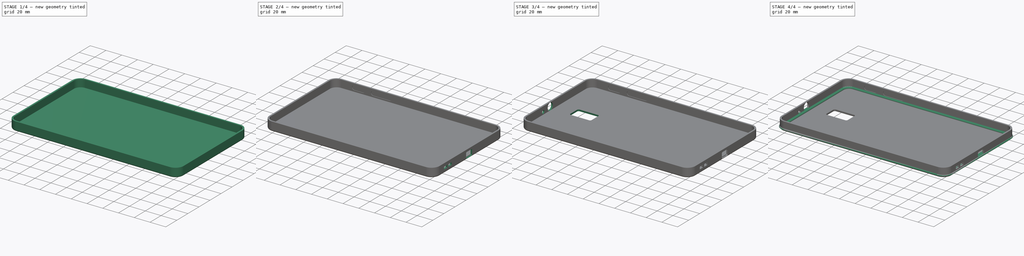
[diagram: build sequence overview — one tinted view per stage of 4, left to right]
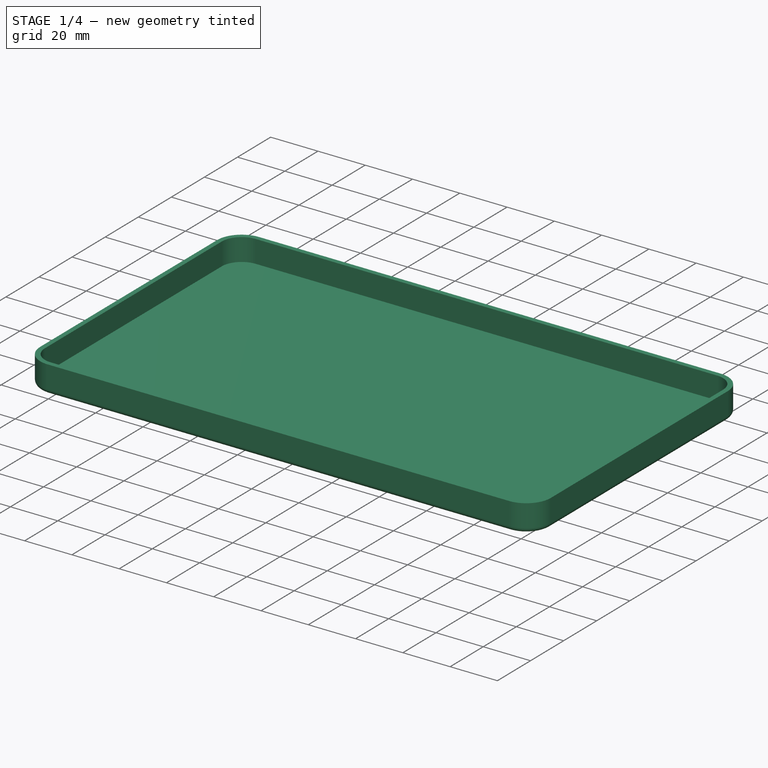
[diagram: stage 1 of 4 — iso view after this stage's code; geometry added in this stage tinted green]
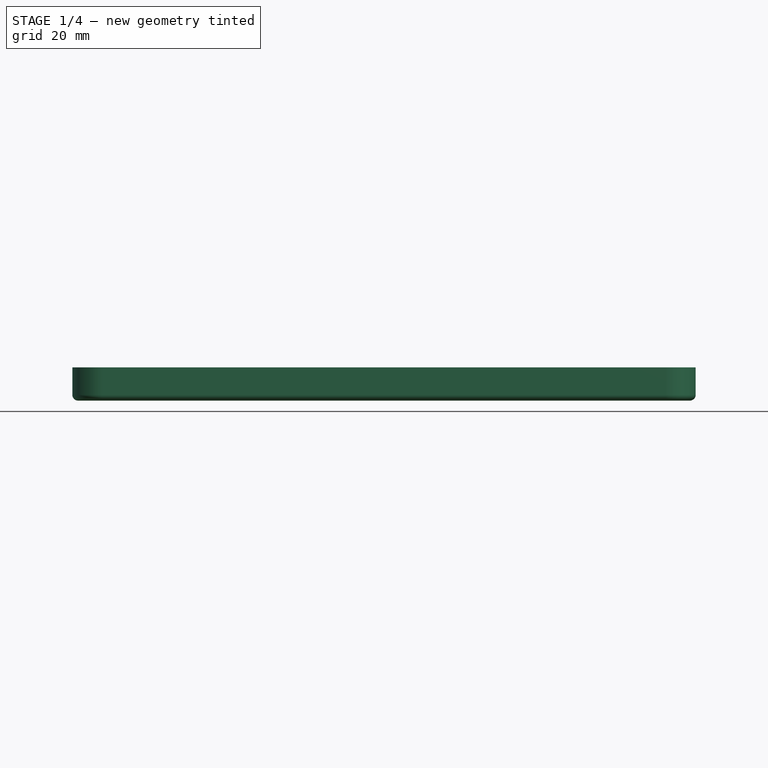
[diagram: stage 1 of 4 — front view after this stage's code; geometry added in this stage tinted green]
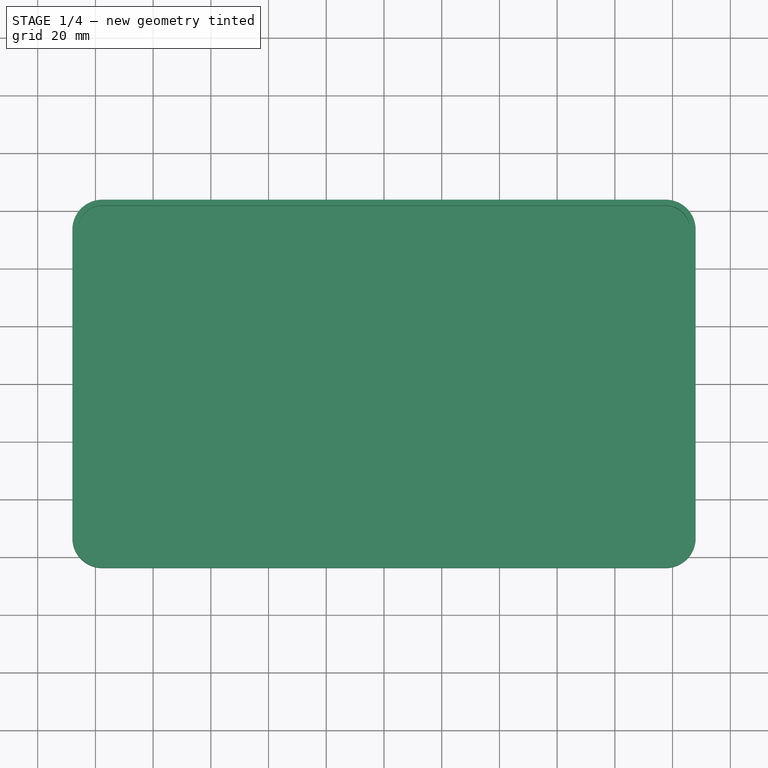
[diagram: stage 1 of 4 — top view after this stage's code; geometry added in this stage tinted green]
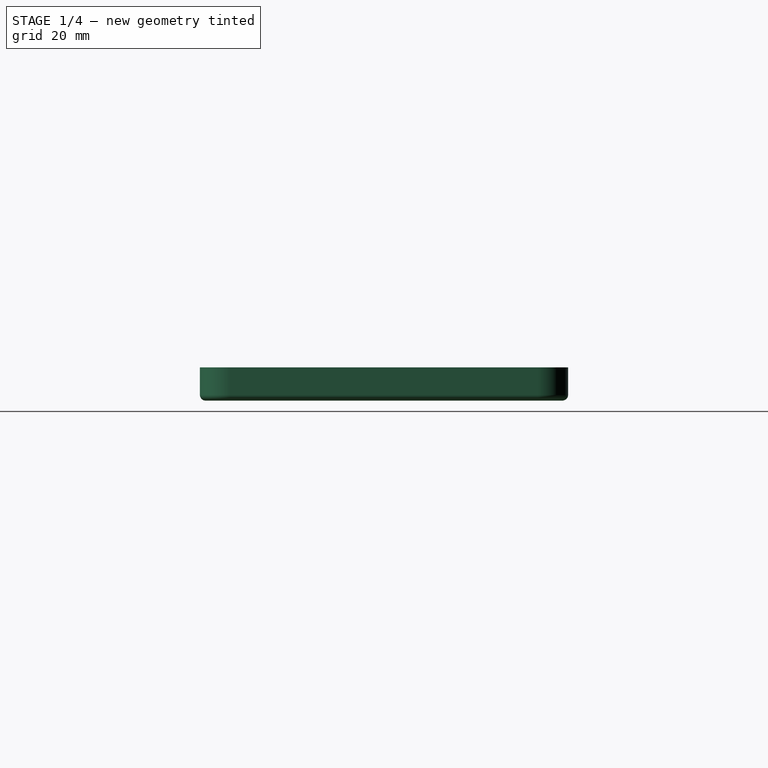
[diagram: stage 1 of 4 — right view after this stage's code; geometry added in this stage tinted green]
FCSTD DOCUMENT  (FreeCAD 0.20R29177 +426 (Git))
Label: tablet_case_samsung_galaxy_tab_A_2017_SM-T380
License: Creative Commons Attribution
LicenseURL: http://creativecommons.org/licenses/by/3.0/
objects: Sketcher::SketchObject×10, PartDesign::Pocket×5, PartDesign::Pad×4, PartDesign::Body×3, PartDesign::AdditivePipe×1, PartDesign::Fillet×1, PartDesign::Chamfer×1
note: 37 computed .brp shape members not serialized (recipe doc carries the construction recipe); baked Part::Feature solids carry a one-line shape summary decoded from their .brp

FEATURE [Sketcher::SketchObject] Sketch  label="device_support_sketch"
  FullyConstrained = true
  MapMode = 5
  Support = -> [XY_Plane]
  expr: Constraints[37] = .Constraints.device_lip_support
  sketch-geometry (16):
    g0: LineSegment StartX=-97.59 StartY=61.8 StartZ=0 EndX=97.59 EndY=61.8 EndZ=0
    g1: LineSegment StartX=106 StartY=53.39 StartZ=0 EndX=106 EndY=-53.39 EndZ=0
    g2: LineSegment StartX=97.59 StartY=-61.8 StartZ=0 EndX=-97.59 EndY=-61.8 EndZ=0
    g3: LineSegment StartX=-106 StartY=-53.39 StartZ=0 EndX=-106 EndY=53.39 EndZ=0
    g4: ArcOfCircle CenterX=-97.59 CenterY=53.39 CenterZ=0 NormalX=0 NormalY=0 NormalZ=1 AngleXU=0 Radius=8.41 StartAngle=1.5708 EndAngle=3.14159
    g5: ArcOfCircle CenterX=97.59 CenterY=53.39 CenterZ=0 NormalX=0 NormalY=0 NormalZ=1 AngleXU=0 Radius=8.41 StartAngle=3e-16 EndAngle=1.5708
    g6: ArcOfCircle CenterX=97.59 CenterY=-53.39 CenterZ=0 NormalX=0 NormalY=0 NormalZ=1 AngleXU=0 Radius=8.41 StartAngle=4.71239 EndAngle=6.28319
    g7: ArcOfCircle CenterX=-97.59 CenterY=-53.39 CenterZ=0 NormalX=0 NormalY=0 NormalZ=1 AngleXU=0 Radius=8.41 StartAngle=3.14159 EndAngle=4.71239
    g8: LineSegment StartX=-101 StartY=56.8 StartZ=0 EndX=-10 EndY=56.8 EndZ=0
    g9: LineSegment StartX=-10 StartY=56.8 StartZ=0 EndX=-10 EndY=-56.8 EndZ=0
    g10: LineSegment StartX=-10 StartY=-56.8 StartZ=0 EndX=-101 EndY=-56.8 EndZ=0
    g11: LineSegment StartX=-101 StartY=-56.8 StartZ=0 EndX=-101 EndY=56.8 EndZ=0
    g12: LineSegment StartX=10 StartY=56.8 StartZ=0 EndX=101 EndY=56.8 EndZ=0
    g13: LineSegment StartX=101 StartY=56.8 StartZ=0 EndX=101 EndY=-56.8 EndZ=0
    g14: LineSegment StartX=101 StartY=-56.8 StartZ=0 EndX=10 EndY=-56.8 EndZ=0
    g15: LineSegment StartX=10 StartY=-56.8 StartZ=0 EndX=10 EndY=56.8 EndZ=0
  constraints (39):
    c: Horizontal(g0)
    c: Horizontal(g2)
    c: Vertical(g1)
    c: Vertical(g3)
    c: Tangent(g0,g4) = 1.5708
    c: Tangent(g3,g4) = 1.5708
    c: Tangent(g0,g5) = 1.5708
    c: Tangent(g1,g5) = 1.5708
    c: Tangent(g1,g6) = 1.5708
    c: Tangent(g2,g6) = 1.5708
    c: Tangent(g2,g7) = 1.5708
    c: Tangent(g3,g7) = 1.5708
    c: Equal(g0,g2)
    c: Symmetric(g0,g2,g-1)
    c: Symmetric(g3,g1,g-2)
    c: DistanceX(g3,g1) = 212  'device_height'
    c: Radius(g4) = 8.41  'device_corner_radius'
    c: DistanceY(g2,g0) = 123.6  'device_width'
    c: Coincident(g8,g9)
    c: Coincident(g9,g10)
    c: Coincident(g10,g11)
    c: Coincident(g11,g8)
    c: Horizontal(g8)
    c: Horizontal(g10)
    c: Vertical(g9)
    c: Coincident(g12,g13)
    c: Coincident(g13,g14)
    c: Coincident(g14,g15)
    c: Coincident(g15,g12)
    c: Horizontal(g12)
    c: Horizontal(g14)
    c: Vertical(g15)
    c: Equal(g8,g12)
    c: Symmetric(g8,g10,g-1)
    c: Symmetric(g12,g13,g-1)
    c: Symmetric(g8,g12,g-2)
    c: DistanceX(g3,g10) = 5  'device_lip_support'
    c: DistanceY(g2,g10) = 5
    c: DistanceX(g8,g12) = 20  'device_center_support'
FEATURE [PartDesign::Pad] Pad  label="device_support_pad"
  Direction = (0,0,1)
  Length = 9
  Length2 = 10
  Profile = -> Sketch
  ReferenceAxis = -> Sketch [N_Axis]
  Type = 0
FEATURE [PartDesign::Body] Body  label="device_support"
  Group = -> [Sketch,Pad]
  Origin = -> Origin
  Tip = -> Pad
FEATURE [Sketcher::SketchObject] Sketch001  label="case_base_sketch"
  FullyConstrained = true
  MapMode = 5
  Support = -> [XY_Plane001]
  expr: Constraints[12] = <<device_support_sketch>>.Constraints.device_corner_radius
  expr: Constraints[16] = Sketch.Constraints.device_height
  expr: Constraints[17] = <<device_support_sketch>>.Constraints.device_width
  sketch-geometry (8):
    g0: LineSegment StartX=-97.59 StartY=61.8 StartZ=0 EndX=97.59 EndY=61.8 EndZ=0
    g1: LineSegment StartX=106 StartY=53.39 StartZ=0 EndX=106 EndY=-53.39 EndZ=0
    g2: LineSegment StartX=97.59 StartY=-61.8 StartZ=0 EndX=-97.59 EndY=-61.8 EndZ=0
    g3: LineSegment StartX=-106 StartY=-53.39 StartZ=0 EndX=-106 EndY=53.39 EndZ=0
    g4: ArcOfCircle CenterX=-97.59 CenterY=53.39 CenterZ=0 NormalX=0 NormalY=0 NormalZ=1 AngleXU=0 Radius=8.41 StartAngle=1.5708 EndAngle=3.14159
    g5: ArcOfCircle CenterX=97.59 CenterY=53.39 CenterZ=0 NormalX=0 NormalY=0 NormalZ=1 AngleXU=0 Radius=8.41 StartAngle=0 EndAngle=1.5708
    g6: ArcOfCircle CenterX=97.59 CenterY=-53.39 CenterZ=0 NormalX=0 NormalY=0 NormalZ=1 AngleXU=0 Radius=8.41 StartAngle=4.71239 EndAngle=6.28319
    g7: ArcOfCircle CenterX=-97.59 CenterY=-53.39 CenterZ=0 NormalX=0 NormalY=0 NormalZ=1 AngleXU=0 Radius=8.41 StartAngle=3.14159 EndAngle=4.71239
  constraints (18):
    c: Horizontal(g0)
    c: Horizontal(g2)
    c: Vertical(g1)
    c: Vertical(g3)
    c: Tangent(g0,g4) = 1.5708
    c: Tangent(g3,g4) = 1.5708
    c: Tangent(g0,g5) = 1.5708
    c: Tangent(g1,g5) = 1.5708
    c: Tangent(g1,g6) = 1.5708
    c: Tangent(g2,g6) = 1.5708
    c: Tangent(g2,g7) = 1.5708
    c: Tangent(g3,g7) = 1.5708
    c: Radius(g4) = 8.41
    c: Equal(g6,g7)
    c: Symmetric(g1,g3,g-2)
    c: Symmetric(g0,g2,g-1)
    c: DistanceX(g3,g1) = 212
    c: DistanceY(g2,g0) = 123.6
FEATURE [PartDesign::Pad] Pad001  label="case_base_pad"
  Direction = (0,0,1)
  Length = 2
  Length2 = 10
  Profile = -> Sketch001
  ReferenceAxis = -> Sketch001 [N_Axis]
  Reversed = true
  Type = 0
FEATURE [Sketcher::SketchObject] Sketch002  label="case_edge_sketch"
  ExternalGeometry = -> [Pad001]
  FullyConstrained = true
  MapMode = 5
  Placement = pos=(0,0,0) rot=(1,0,0;1.5708rad)
  Support = -> [XZ_Plane001]
  expr: .Constraints.case_base_pad_Length = <<case_base_pad>>.Length
  expr: .Constraints.case_side_thickness = .Constraints.case_base_pad_Length
  expr: .Constraints.device_support_pad_Length = <<device_support_pad>>.Length + 0.5mm
  sketch-geometry (5):
    g0: LineSegment StartX=-106 StartY=9.5 StartZ=0 EndX=-106 EndY=1.24e-14 EndZ=0
    g1: LineSegment StartX=-106 StartY=1.24e-14 StartZ=0 EndX=-106 EndY=-2 EndZ=0
    g2: LineSegment StartX=-106 StartY=9.5 StartZ=0 EndX=-108 EndY=9.5 EndZ=0
    g3: LineSegment StartX=-108 StartY=9.5 StartZ=0 EndX=-108 EndY=-7.28e-14 EndZ=0
    g4: ArcOfCircle CenterX=-106 CenterY=-6.9e-14 CenterZ=0 NormalX=0 NormalY=0 NormalZ=1 AngleXU=0 Radius=2 StartAngle=3.14159 EndAngle=4.71239
  constraints (15):
    c: Vertical(g0)
    c: Coincident(g1,g0)
    c: Vertical(g1)
    c: DistanceY(g0,g0) = 9.5  'device_support_pad_Length'
    c: DistanceY(g1,g1) = 2  'case_base_pad_Length'
    c: Coincident(g1,g-3)  'base_attachment_point'
    c: Coincident(g2,g0)
    c: Horizontal(g2)
    c: Coincident(g3,g2)
    c: Vertical(g3)
    c: DistanceX(g2,g2) = 2  'case_side_thickness'
    c: Coincident(g4,g1)
    c: Coincident(g3,g4)
    c: Angle(g4) = 1.5708  'case_base_arc'
    c: Equal(g3,g0)  'case_edge_outer_height'
FEATURE [PartDesign::AdditivePipe] AdditivePipe  label="case_edge_pipe"
  AuxilleryCurvelinear = true
  AuxillerySpineTangent = false
  BaseFeature = -> Pad001
  Binormal = (0,0,0)
  Mode = 0
  Profile = -> Sketch002
  Spine = -> Pad001 [Edge23,Edge3,Edge6,Edge9,Edge12,Edge15,Edge18,Edge21]
  SpineTangent = false
  Transformation = 0
  Transition = 0
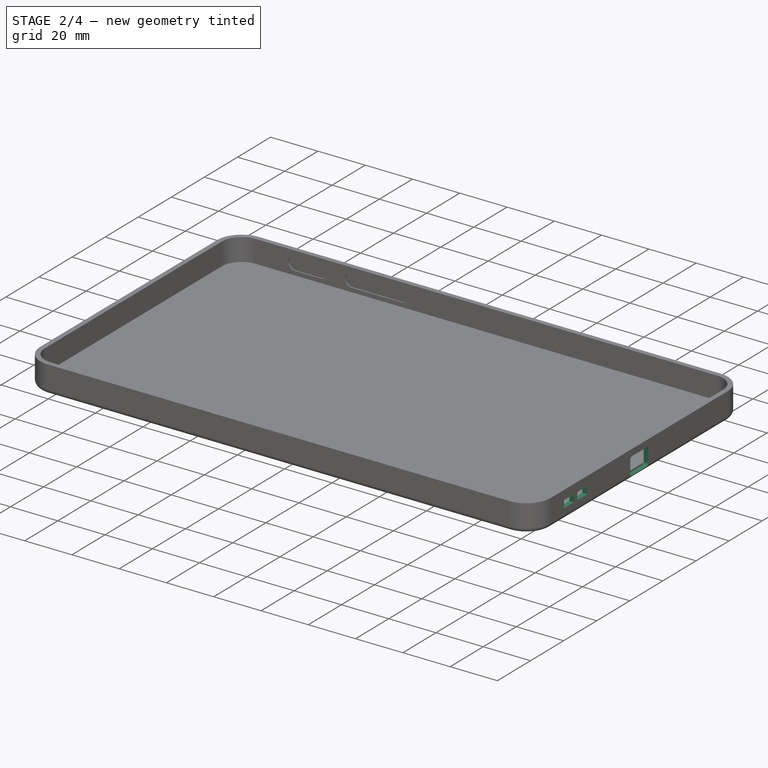
[diagram: stage 2 of 4 — iso view after this stage's code; geometry added in this stage tinted green]
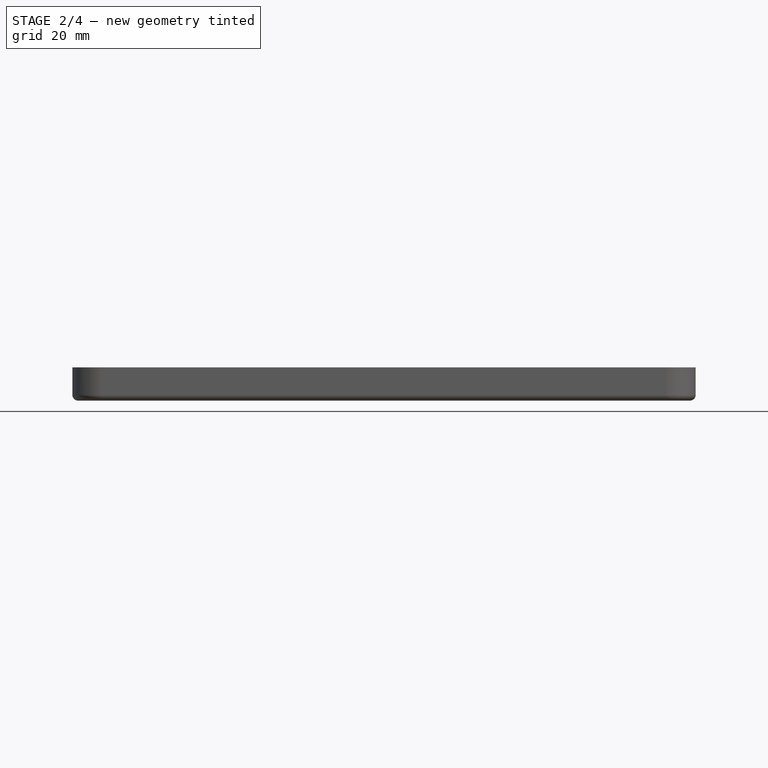
[diagram: stage 2 of 4 — front view after this stage's code; geometry added in this stage tinted green]
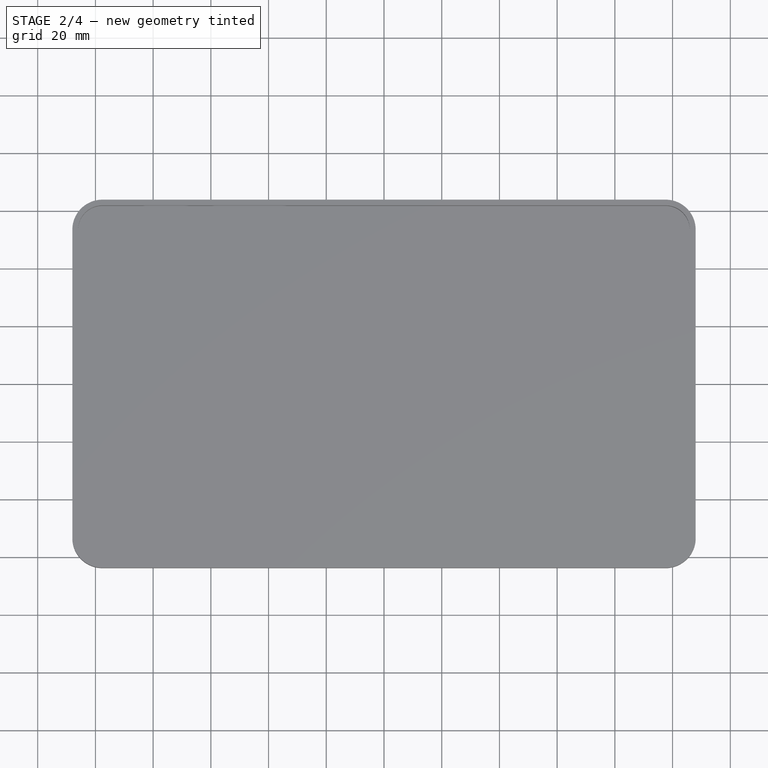
[diagram: stage 2 of 4 — top view after this stage's code; geometry added in this stage tinted green]
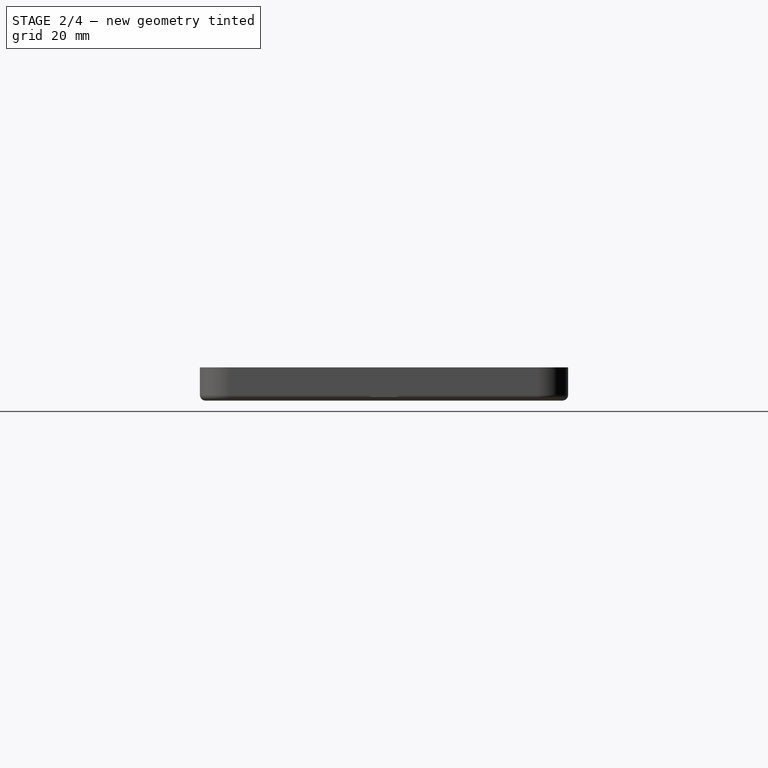
[diagram: stage 2 of 4 — right view after this stage's code; geometry added in this stage tinted green]
FEATURE [PartDesign::Body] Body002  label="case_lip"
  Group = -> [Sketch003,Pad002,Fillet,Chamfer]
  Origin = -> Origin002
  Tip = -> Chamfer
FEATURE [Sketcher::SketchObject] Sketch004  label="case_bottom_sketch"
  FullyConstrained = true
  MapMode = 5
  Placement = pos=(108,0,0) rot=(0.57735,0.57735,0.57735;2.0944rad)
  Support = -> [AdditivePipe]
  expr: .Constraints.bottom_sound_width = 14mm
  expr: .Constraints.power_corner_radius = 1.25mm
  expr: .Constraints.power_z_offset = 0.75mm
  expr: Constraints[50] = .Constraints.bottom_sound_z_offset
  sketch-geometry (20):
    g0: LineSegment StartX=-4.25 StartY=6.75 StartZ=0 EndX=4.25 EndY=6.75 EndZ=0
    g1: LineSegment StartX=5.5 StartY=5.5 StartZ=0 EndX=5.5 EndY=0.5 EndZ=0
    g2: LineSegment StartX=4.25 StartY=-0.75 StartZ=0 EndX=-4.25 EndY=-0.75 EndZ=0
    g3: LineSegment StartX=-5.5 StartY=0.5 StartZ=0 EndX=-5.5 EndY=5.5 EndZ=0
    g4: ArcOfCircle CenterX=-4.25 CenterY=5.5 CenterZ=0 NormalX=0 NormalY=0 NormalZ=1 AngleXU=0 Radius=1.25 StartAngle=1.5708 EndAngle=3.14159
    g5: GeomPoint X=-5.5 Y=6.75 Z=0
    g6: ArcOfCircle CenterX=4.25 CenterY=5.5 CenterZ=0 NormalX=0 NormalY=0 NormalZ=1 AngleXU=0 Radius=1.25 StartAngle=0 EndAngle=1.5708
    g7: GeomPoint X=5.5 Y=6.75 Z=0
    g8: ArcOfCircle CenterX=-4.25 CenterY=0.5 CenterZ=0 NormalX=0 NormalY=0 NormalZ=1 AngleXU=0 Radius=1.25 StartAngle=3.14159 EndAngle=4.71239
    g9: GeomPoint X=-5.5 Y=-0.75 Z=0
    g10: ArcOfCircle CenterX=4.25 CenterY=0.5 CenterZ=0 NormalX=0 NormalY=0 NormalZ=1 AngleXU=0 Radius=1.25 StartAngle=4.71239 EndAngle=6.28319
    g11: GeomPoint X=5.5 Y=-0.75 Z=0
    g12: LineSegment StartX=-31.5 StartY=5.6 StartZ=0 EndX=-31.5 EndY=2.5 EndZ=0
    g13: LineSegment StartX=-45.5 StartY=2.5 StartZ=0 EndX=-45.5 EndY=5.6 EndZ=0
    g14: LineSegment StartX=-39.5 StartY=5.6 StartZ=0 EndX=-39.5 EndY=2.5 EndZ=0
    g15: LineSegment StartX=-37.5 StartY=5.6 StartZ=0 EndX=-37.5 EndY=2.5 EndZ=0
    g16: LineSegment StartX=-45.5 StartY=5.6 StartZ=0 EndX=-39.5 EndY=5.6 EndZ=0
    g17: LineSegment StartX=-37.5 StartY=5.6 StartZ=0 EndX=-31.5 EndY=5.6 EndZ=0
    g18: LineSegment StartX=-45.5 StartY=2.5 StartZ=0 EndX=-39.5 EndY=2.5 EndZ=0
    g19: LineSegment StartX=-37.5 StartY=2.5 StartZ=0 EndX=-31.5 EndY=2.5 EndZ=0
  constraints (51):
    c: Horizontal(g2)
    c: Vertical(g1)
    c: Vertical(g3)
    c: DistanceX(g5,g7) = 11  'power_width'
    c: DistanceY(g11,g7) = 7.5  'power_height'
    c: Symmetric(g7,g5,g-2)  'power_y_loc'
    c: DistanceY(g11,g-1) = 0.75  'power_z_offset'
    c: PointOnObject(g5,g0)
    c: PointOnObject(g5,g3)
    c: Tangent(g0,g4) = 1.5708
    c: Tangent(g3,g4) = 1.5708
    c: PointOnObject(g7,g0)
    c: PointOnObject(g7,g1)
    c: Tangent(g0,g6) = 1.5708
    c: Tangent(g1,g6) = 1.5708
    c: PointOnObject(g9,g3)
    c: PointOnObject(g9,g2)
    c: Tangent(g3,g8) = 1.5708
    c: Tangent(g2,g8) = 1.5708
    c: PointOnObject(g11,g1)
    c: PointOnObject(g11,g2)
    c: Tangent(g1,g10) = 1.5708
    c: Tangent(g2,g10) = 1.5708
    c: Horizontal(g4,g6)
    c: Horizontal(g8,g10)
    c: Vertical(g4,g8)
    c: DistanceY(g4,g0) = 1.25  'power_corner_radius'
    c: Vertical(g12)
    c: Vertical(g13)
    c: DistanceX(g13,g12) = 14  'bottom_sound_width'
    c: DistanceY(g13,g13) = 3.1  'bottom_sound_height'
    c: DistanceY(g-1,g12) = 2.5  'bottom_sound_z_offset'
    c: DistanceX(g12,g-1) = 31.5  'bottom_sound_y_loc'
    c: Vertical(g15)
    c: Vertical(g14)
    c: Coincident(g16,g13)
    c: Coincident(g16,g14)
    c: Horizontal(g16)
    c: Coincident(g17,g15)
    c: Coincident(g17,g12)
    c: Horizontal(g17)
    c: DistanceX(g14,g15) = 2  'bottom_sound_support_width'
    c: DistanceX(g15,g12) = 6  'bottom_sound_width_part'
    c: Coincident(g18,g13)
    c: Coincident(g18,g14)
    c: Horizontal(g18)
    c: Coincident(g19,g15)
    c: Coincident(g19,g12)
    c: Horizontal(g19)
    c: Equal(g12,g13)
    c: DistanceY(g-1,g14) = 2.5
FEATURE [PartDesign::Pocket] Pocket  label="case_bottom_pocket"
  BaseFeature = -> AdditivePipe
  Direction = (-1,0,0)
  Length = 5
  Length2 = 5
  Profile = -> Sketch004
  ReferenceAxis = -> Sketch004 [N_Axis]
  Type = 2
FEATURE [Sketcher::SketchObject] Sketch005  label="right_button_pocket_sketch"
  ExternalGeometry = -> [Pocket]
  FullyConstrained = true
  MapMode = 5
  Placement = pos=(0,63.8,0) rot=(0,0.707107,0.707107;3.14159rad)
  Support = -> [Pocket]
  expr: .Constraints.power_button_x_offset = <<device_support_sketch>>.Constraints.device_height / 2 - 36mm
  expr: .Constraints.right_button_pocket_height = 5.5mm
  expr: .Constraints.right_button_z_offset = <<device_support_pad>>.Length / 2
  expr: .Constraints.volume_button_x_offset = <<device_support_sketch>>.Constraints.device_height / 2 - 70mm
  expr: Constraints[13] = .Constraints.right_button_pocket_height
  expr: Constraints[17] = .Constraints.right_button_z_offset
  sketch-geometry (8):
    g0: ArcOfCircle CenterX=70 CenterY=4.5 CenterZ=0 NormalX=0 NormalY=0 NormalZ=1 AngleXU=0 Radius=2.75 StartAngle=1.5708 EndAngle=4.71239
    g1: ArcOfCircle CenterX=81 CenterY=4.5 CenterZ=0 NormalX=0 NormalY=0 NormalZ=1 AngleXU=0 Radius=2.75 StartAngle=4.71239 EndAngle=7.85398
    g2: LineSegment StartX=70 StartY=1.75 StartZ=0 EndX=81 EndY=1.75 EndZ=0
    g3: LineSegment StartX=81 StartY=7.25 StartZ=0 EndX=70 EndY=7.25 EndZ=0
    g4: ArcOfCircle CenterX=36 CenterY=4.5 CenterZ=0 NormalX=0 NormalY=0 NormalZ=1 AngleXU=0 Radius=2.75 StartAngle=1.5708 EndAngle=4.71239
    g5: ArcOfCircle CenterX=57 CenterY=4.5 CenterZ=0 NormalX=0 NormalY=0 NormalZ=1 AngleXU=0 Radius=2.75 StartAngle=4.71239 EndAngle=7.85398
    g6: LineSegment StartX=36 StartY=1.75 StartZ=0 EndX=57 EndY=1.75 EndZ=0
    g7: LineSegment StartX=57 StartY=7.25 StartZ=0 EndX=36 EndY=7.25 EndZ=0
  constraints (20):
    c: Tangent(g0,g2) = -1.5708
    c: Tangent(g2,g1) = -1.5708
    c: Tangent(g1,g3) = -1.5708
    c: Tangent(g3,g0) = -1.5708
    c: Equal(g0,g1)
    c: Horizontal(g2)
    c: Tangent(g4,g6) = -1.5708
    c: Tangent(g6,g5) = -1.5708
    c: Tangent(g5,g7) = -1.5708
    c: Tangent(g7,g4) = -1.5708
    c: Equal(g4,g5)
    c: Horizontal(g6)
    c: DistanceY(g1,g1) = 5.5  'right_button_pocket_height'
    c: DistanceY(g5,g5) = 5.5
    c: DistanceX(g0,g1) = 11  'power_button_width'
    c: DistanceX(g4,g5) = 21  'volume_button_width'
    c: DistanceY(g-1,g4) = 4.5  'right_button_z_offset'
    c: DistanceY(g-1,g0) = 4.5
    c: DistanceX(g-1,g4) = 36  'volume_button_x_offset'
    c: DistanceX(g-1,g0) = 70  'power_button_x_offset'
FEATURE [PartDesign::Pocket] Pocket001  label="right_button_outside_pocket"
  BaseFeature = -> Pocket
  Direction = (0,-1,2e-16)
  Length = 0.5
  Length2 = 5
  Profile = -> Sketch005
  ReferenceAxis = -> Sketch005 [N_Axis]
  Type = 0
  expr: Length = <<case_edge_sketch>>.Constraints.case_side_thickness / 4
FEATURE [Sketcher::SketchObject] Sketch006  label="right_button_pocket_inside_sketch"
  ExternalGeometry = -> [Pocket001]
  FullyConstrained = true
  MapMode = 5
  Placement = pos=(0,61.8,0) rot=(1,0,0;1.5708rad)
  Support = -> [Pocket001]
  expr: .Constraints.power_button_inner_x_offset = <<right_button_pocket_sketch>>.Constraints.power_button_x_offset + <<device_support_sketch>>.Constraints.device_height / 2
  expr: .Constraints.volume_button_inner_x_offset = <<right_button_pocket_sketch>>.Constraints.volume_button_x_offset + <<device_support_sketch>>.Constraints.device_height / 2
  expr: Constraints[12] = <<right_button_pocket_sketch>>.Constraints.power_button_width
  expr: Constraints[13] = <<right_button_pocket_sketch>>.Constraints.right_button_pocket_height
  expr: Constraints[14] = <<right_button_pocket_sketch>>.Constraints.right_button_pocket_height
  expr: Constraints[15] = <<right_button_pocket_sketch>>.Constraints.volume_button_width
  expr: Constraints[18] = Sketch005.Constraints.right_button_z_offset
  expr: Constraints[19] = Sketch005.Constraints.right_button_z_offset
  sketch-geometry (8):
    g0: ArcOfCircle CenterX=-81 CenterY=4.5 CenterZ=0 NormalX=0 NormalY=0 NormalZ=1 AngleXU=0 Radius=2.75 StartAngle=1.5708 EndAngle=4.71239
    g1: ArcOfCircle CenterX=-70 CenterY=4.5 CenterZ=0 NormalX=0 NormalY=0 NormalZ=1 AngleXU=0 Radius=2.75 StartAngle=4.71239 EndAngle=7.85398
    g2: LineSegment StartX=-81 StartY=1.75 StartZ=0 EndX=-70 EndY=1.75 EndZ=0
    g3: LineSegment StartX=-70 StartY=7.25 StartZ=0 EndX=-81 EndY=7.25 EndZ=0
    g4: ArcOfCircle CenterX=-57 CenterY=4.5 CenterZ=0 NormalX=0 NormalY=0 NormalZ=1 AngleXU=0 Radius=2.75 StartAngle=1.5708 EndAngle=4.71239
    g5: ArcOfCircle CenterX=-36 CenterY=4.5 CenterZ=0 NormalX=0 NormalY=0 NormalZ=1 AngleXU=0 Radius=2.75 StartAngle=4.71239 EndAngle=7.85398
    g6: LineSegment StartX=-57 StartY=1.75 StartZ=0 EndX=-36 EndY=1.75 EndZ=0
    g7: LineSegment StartX=-36 StartY=7.25 StartZ=0 EndX=-57 EndY=7.25 EndZ=0
  constraints (20):
    c: Tangent(g0,g2) = -1.5708
    c: Tangent(g2,g1) = -1.5708
    c: Tangent(g1,g3) = -1.5708
    c: Tangent(g3,g0) = -1.5708
    c: Equal(g0,g1)
    c: Horizontal(g2)
    c: Tangent(g4,g6) = -1.5708
    c: Tangent(g6,g5) = -1.5708
    c: Tangent(g5,g7) = -1.5708
    c: Tangent(g7,g4) = -1.5708
    c: Equal(g4,g5)
    c: Horizontal(g6)
    c: DistanceX(g0,g1) = 11
    c: DistanceY(g0,g0) = 5.5
    c: DistanceY(g4,g4) = 5.5
    c: DistanceX(g4,g5) = 21
    c: DistanceX(g5,g-3) = 142  'volume_button_inner_x_offset'
    c: DistanceX(g1,g-3) = 176  'power_button_inner_x_offset'
    c: DistanceY(g-1,g5) = 4.5
    c: DistanceY(g-1,g1) = 4.5
FEATURE [PartDesign::Pocket] Pocket002  label="right_button_inside_pocket"
  BaseFeature = -> Pocket001
  Direction = (0,1,-2e-16)
  Length = 0.5
  Length2 = 5
  Profile = -> Sketch006
  ReferenceAxis = -> Sketch006 [N_Axis]
  Type = 0
  expr: Length = <<case_edge_sketch>>.Constraints.case_side_thickness / 4
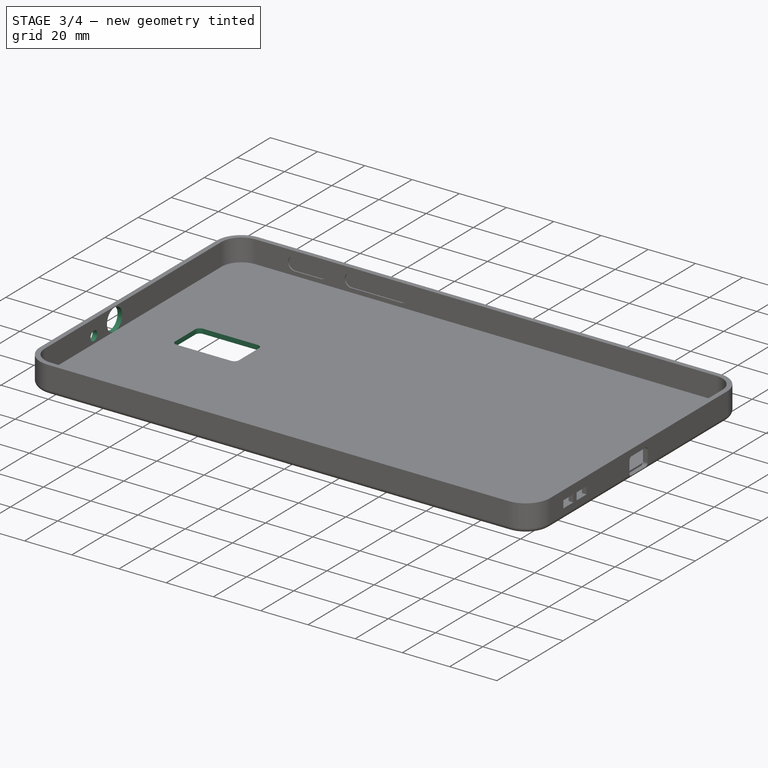
[diagram: stage 3 of 4 — iso view after this stage's code; geometry added in this stage tinted green]
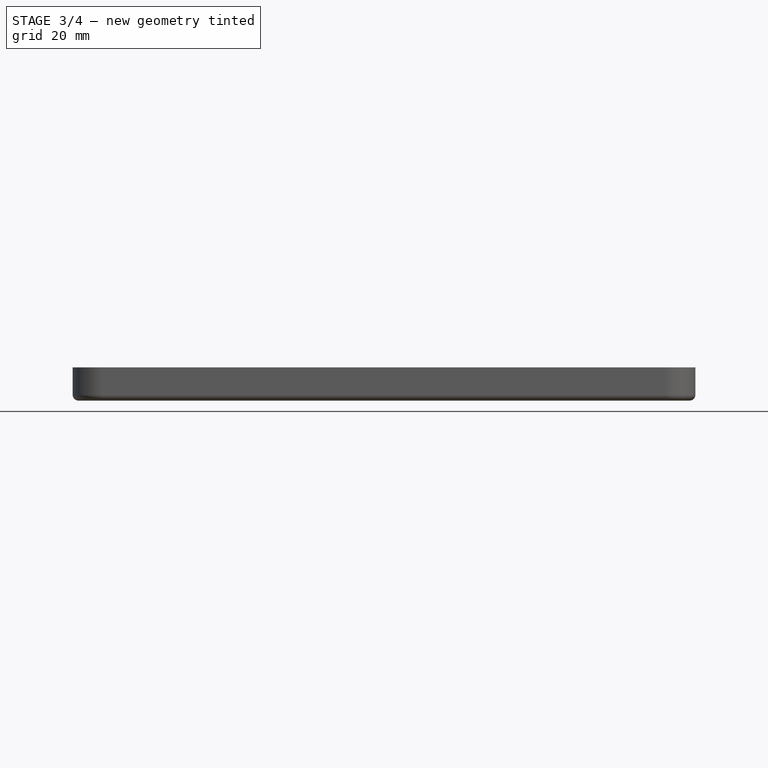
[diagram: stage 3 of 4 — front view after this stage's code; geometry added in this stage tinted green]
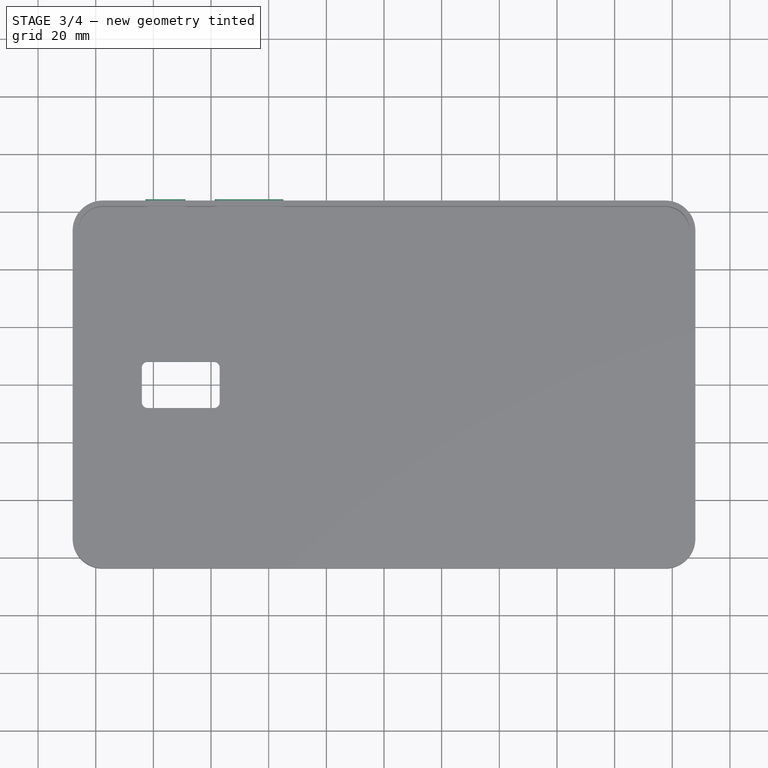
[diagram: stage 3 of 4 — top view after this stage's code; geometry added in this stage tinted green]
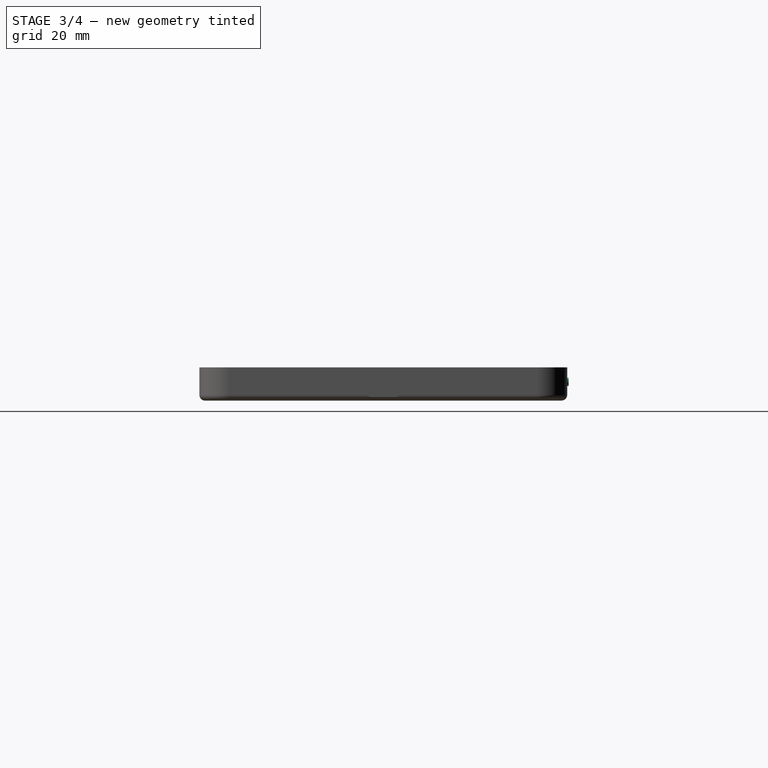
[diagram: stage 3 of 4 — right view after this stage's code; geometry added in this stage tinted green]
FEATURE [Sketcher::SketchObject] Sketch007  label="right_button_sketch"
  ExternalGeometry = -> [Pocket002]
  FullyConstrained = true
  MapMode = 5
  Placement = pos=(0,63.8,0) rot=(0,0.707107,0.707107;3.14159rad)
  Support = -> [Pocket002]
  expr: .Constraints.right_button_height = <<right_button_pocket_sketch>>.Constraints.right_button_pocket_height - 2.7mm
  expr: Constraints[13] = .Constraints.right_button_height
  sketch-geometry (12):
    g0: ArcOfCircle CenterX=36.25 CenterY=4.5 CenterZ=0 NormalX=0 NormalY=0 NormalZ=1 AngleXU=0 Radius=1.4 StartAngle=1.5708 EndAngle=4.71239
    g1: ArcOfCircle CenterX=57.25 CenterY=4.5 CenterZ=0 NormalX=0 NormalY=0 NormalZ=1 AngleXU=0 Radius=1.4 StartAngle=4.71239 EndAngle=7.85398
    g2: LineSegment StartX=36.25 StartY=3.1 StartZ=0 EndX=57.25 EndY=3.1 EndZ=0
    g3: LineSegment StartX=57.25 StartY=5.9 StartZ=0 EndX=36.25 EndY=5.9 EndZ=0
    g4: ArcOfCircle CenterX=70.25 CenterY=4.5 CenterZ=0 NormalX=0 NormalY=0 NormalZ=1 AngleXU=0 Radius=1.4 StartAngle=1.5708 EndAngle=4.71239
    g5: ArcOfCircle CenterX=81.25 CenterY=4.5 CenterZ=0 NormalX=0 NormalY=0 NormalZ=1 AngleXU=0 Radius=1.4 StartAngle=4.71239 EndAngle=7.85398
    g6: LineSegment StartX=70.25 StartY=3.1 StartZ=0 EndX=81.25 EndY=3.1 EndZ=0
    g7: LineSegment StartX=81.25 StartY=5.9 StartZ=0 EndX=70.25 EndY=5.9 EndZ=0
    g8: LineSegment StartX=36.25 StartY=4.5 StartZ=0 EndX=36 EndY=4.5 EndZ=0
    g9: LineSegment StartX=57 StartY=4.5 StartZ=0 EndX=57.25 EndY=4.5 EndZ=0
    g10: LineSegment StartX=70 StartY=4.5 StartZ=0 EndX=70.25 EndY=4.5 EndZ=0
    g11: LineSegment StartX=81.25 StartY=4.5 StartZ=0 EndX=81 EndY=4.5 EndZ=0
  constraints (28):
    c: Tangent(g0,g2) = -1.5708
    c: Tangent(g2,g1) = -1.5708
    c: Tangent(g1,g3) = -1.5708
    c: Tangent(g3,g0) = -1.5708
    c: Equal(g0,g1)
    c: Horizontal(g2)
    c: Tangent(g4,g6) = -1.5708
    c: Tangent(g6,g5) = -1.5708
    c: Tangent(g5,g7) = -1.5708
    c: Tangent(g7,g4) = -1.5708
    c: Equal(g4,g5)
    c: Horizontal(g7)
    c: DistanceY(g1,g1) = 2.8  'right_button_height'
    c: DistanceY(g4,g4) = 2.8
    c: Coincident(g8,g0)
    c: Coincident(g8,g-4)
    c: Coincident(g9,g-3)
    c: Coincident(g9,g1)
    c: Horizontal(g9)
    c: Coincident(g10,g-5)
    c: Coincident(g10,g4)
    c: Horizontal(g10)
    c: Coincident(g11,g5)
    c: Coincident(g11,g-6)
    c: DistanceX(g8,g0) = 0.25  'button_width_offset'
    c: Equal(g8,g9)
    c: Equal(g8,g10)
    c: Equal(g10,g11)
FEATURE [PartDesign::Pad] Pad003  label="right_button_pad"
  BaseFeature = -> Pocket002
  Direction = (-0.2,1,0)
  Length = 0.5
  Length2 = 1
  Profile = -> Sketch007
  ReferenceAxis = -> Sketch007 [N_Axis]
  TaperAngle = -2
  Type = 4
  UseCustomVector = true
  expr: Length = <<case_edge_sketch>>.Constraints.case_side_thickness / 4
  expr: Length2 = <<case_edge_sketch>>.Constraints.case_side_thickness - 1mm
FEATURE [Sketcher::SketchObject] Sketch008  label="case_top_sketch"
  FullyConstrained = true
  MapMode = 5
  Placement = pos=(-108,0,0) rot=(0.57735,-0.57735,-0.57735;2.0944rad)
  Support = -> [Pad003]
  expr: .Constraints.audio_jack_z_offset = <<device_support_pad>>.Length / 2
  expr: .Constraints.audo_jack_y_offset = <<device_support_sketch>>.Constraints.device_width / 2 - 50.5mm
  expr: .Constraints.mike_hole_y_offset = <<device_support_sketch>>.Constraints.device_width / 2 - 38mm
  sketch-geometry (2):
    g0: Circle CenterX=11.3 CenterY=4.5 CenterZ=0 NormalX=0 NormalY=0 NormalZ=1 AngleXU=0 Radius=4.625
    g1: Circle CenterX=23.8 CenterY=3 CenterZ=0 NormalX=0 NormalY=0 NormalZ=1 AngleXU=0 Radius=2
  constraints (6):
    c: Diameter(g1) = 4  'mice_hole_diameter'
    c: Diameter(g0) = 9.25  'audio_jack_diameter'
    c: DistanceY(g-1,g0) = 4.5  'audio_jack_z_offset'
    c: DistanceX(g-1,g0) = 11.3  'audo_jack_y_offset'
    c: DistanceX(g-1,g1) = 23.8  'mike_hole_y_offset'
    c: DistanceY(g-1,g1) = 3  'mike_hole_z_offset'
FEATURE [PartDesign::Pocket] Pocket003  label="case_top_pocket"
  BaseFeature = -> Pad003
  Direction = (1,0,0)
  Length = 5
  Length2 = 5
  Profile = -> Sketch008
  ReferenceAxis = -> Sketch008 [N_Axis]
  Type = 2
FEATURE [Sketcher::SketchObject] Sketch009  label="camera_hole_sketch"
  FullyConstrained = true
  MapMode = 5
  Support = -> [Pocket003]
  expr: .Constraints.camra_hole_x_offset = <<device_support_sketch>>.Constraints.device_height / 2 - 22mm
  sketch-geometry (14):
    g0: LineSegment StartX=-82 StartY=8 StartZ=0 EndX=-59 EndY=8 EndZ=0
    g1: LineSegment StartX=-57 StartY=6 StartZ=0 EndX=-57 EndY=-6 EndZ=0
    g2: LineSegment StartX=-59 StartY=-8 StartZ=0 EndX=-82 EndY=-8 EndZ=0
    g3: LineSegment StartX=-84 StartY=-6 StartZ=0 EndX=-84 EndY=6 EndZ=0
    g4: ArcOfCircle CenterX=-82 CenterY=6 CenterZ=0 NormalX=0 NormalY=0 NormalZ=1 AngleXU=0 Radius=2 StartAngle=1.5708 EndAngle=3.14159
    g5: GeomPoint X=-84 Y=8 Z=0
    g6: ArcOfCircle CenterX=-59 CenterY=6 CenterZ=0 NormalX=0 NormalY=0 NormalZ=1 AngleXU=0 Radius=2 StartAngle=0 EndAngle=1.5708
    g7: GeomPoint X=-57 Y=8 Z=0
    g8: ArcOfCircle CenterX=-59 CenterY=-6 CenterZ=0 NormalX=0 NormalY=0 NormalZ=1 AngleXU=0 Radius=2 StartAngle=4.71239 EndAngle=6.28319
    g9: GeomPoint X=-57 Y=-8 Z=0
    g10: ArcOfCircle CenterX=-82 CenterY=-6 CenterZ=0 NormalX=0 NormalY=0 NormalZ=1 AngleXU=0 Radius=2 StartAngle=3.14159 EndAngle=4.71239
    g11: GeomPoint X=-84 Y=-8 Z=0
    g12: LineSegment StartX=-59 StartY=6 StartZ=0 EndX=-59 EndY=-6 EndZ=0
    g13: LineSegment StartX=-82 StartY=6 StartZ=0 EndX=-82 EndY=-6 EndZ=0
  constraints (31):
    c: Horizontal(g0)
    c: Horizontal(g2)
    c: Vertical(g1)
    c: Vertical(g3)
    c: DistanceX(g5,g7) = 27  'camera_hole_length'
    c: DistanceY(g11,g5) = 16  'camera_hole_width'
    c: DistanceX(g11,g-1) = 84  'camra_hole_x_offset'
    c: PointOnObject(g5,g0)
    c: PointOnObject(g5,g3)
    c: Tangent(g0,g4) = 1.5708
    c: Tangent(g3,g4) = 1.5708
    c: PointOnObject(g7,g0)
    c: PointOnObject(g7,g1)
    c: Tangent(g0,g6) = 1.5708
    c: Tangent(g1,g6) = 1.5708
    c: PointOnObject(g9,g1)
    c: PointOnObject(g9,g2)
    c: Tangent(g1,g8) = 1.5708
    c: Tangent(g2,g8) = 1.5708
    c: PointOnObject(g11,g3)
    c: PointOnObject(g11,g2)
    c: Tangent(g3,g10) = 1.5708
    c: Tangent(g2,g10) = 1.5708
    c: Coincident(g12,g6)
    c: Coincident(g12,g8)
    c: Coincident(g13,g4)
    c: Coincident(g13,g10)
    c: Vertical(g13)
    c: Equal(g12,g13)
    c: Symmetric(g0,g2,g-1)
    c: DistanceY(g4,g0) = 2  'camera_hole_filet_radius'
FEATURE [PartDesign::Pocket] Pocket004  label="camera_hole_pocket"
  BaseFeature = -> Pocket003
  Direction = (0,0,-1)
  Length = 5
  Length2 = 5
  Profile = -> Sketch009
  ReferenceAxis = -> Sketch009 [N_Axis]
  Type = 2
FEATURE [PartDesign::Body] Body001  label="case"
  Group = -> [Sketch001,Pad001,Sketch002,AdditivePipe,Sketch004,Pocket,Sketch005,Pocket001,Sketch006,Pocket002,Sketch007,Pad003,Sketch008,Pocket003,Sketch009,Pocket004]
  Origin = -> Origin001
  Tip = -> Pocket004
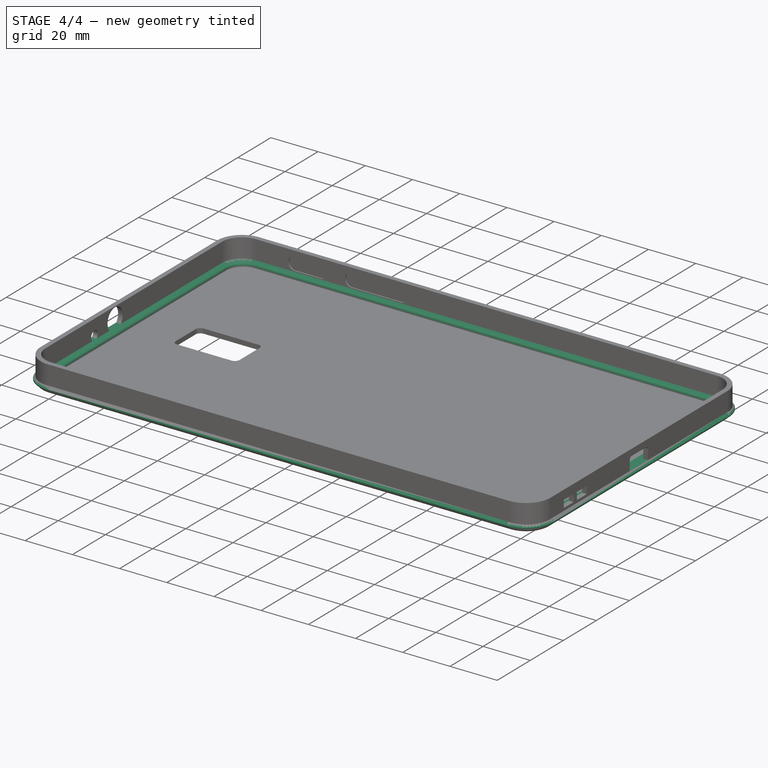
[diagram: stage 4 of 4 — iso view after this stage's code; geometry added in this stage tinted green]
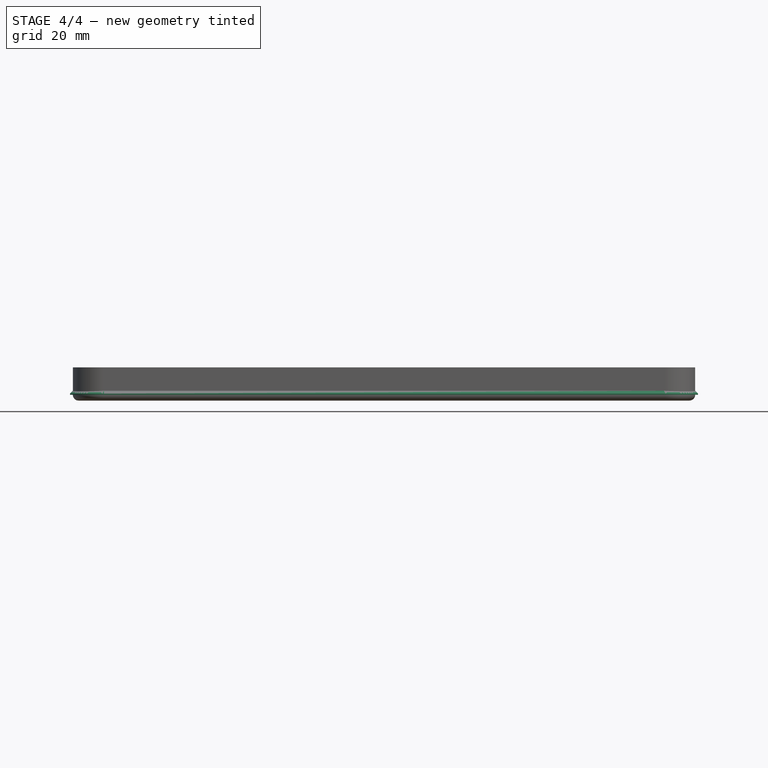
[diagram: stage 4 of 4 — front view after this stage's code; geometry added in this stage tinted green]
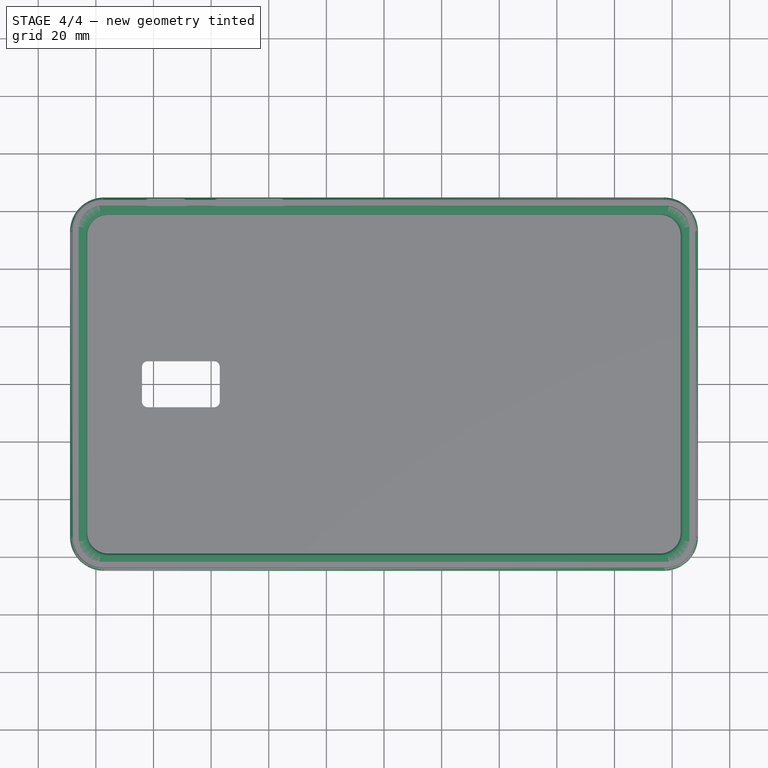
[diagram: stage 4 of 4 — top view after this stage's code; geometry added in this stage tinted green]
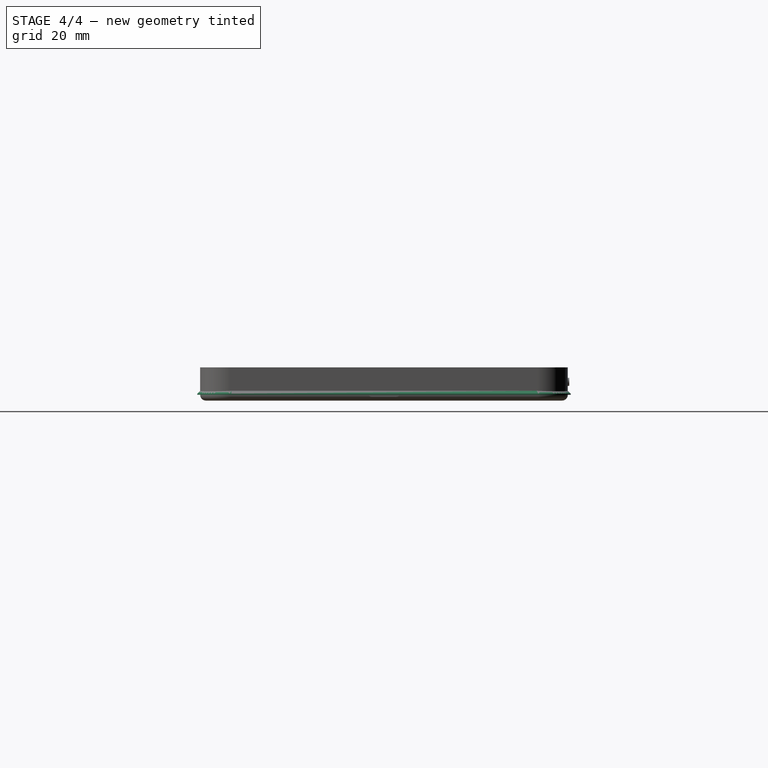
[diagram: stage 4 of 4 — right view after this stage's code; geometry added in this stage tinted green]
FEATURE [Sketcher::SketchObject] Sketch003  label="case_lip_sketch"
  FullyConstrained = true
  MapMode = 5
  Support = -> [XY_Plane002]
  expr: .Constraints.case_side_thickness = <<case_edge_sketch>>.Constraints.case_side_thickness
  expr: .Constraints.device_corner_radius = <<device_support_sketch>>.Constraints.device_corner_radius
  expr: .Constraints.device_height = Sketch.Constraints.device_height + <<case_edge_sketch>>.Constraints.case_side_thickness
  expr: .Constraints.device_width = <<device_support_sketch>>.Constraints.device_width + <<case_edge_sketch>>.Constraints.case_side_thickness
  expr: Constraints[33] = .Constraints.case_lip
  expr: Constraints[34] = .Constraints.case_lip
  expr: Constraints[36] = .Constraints.case_lip
  expr: Constraints[52] = .Constraints.case_side_thickness
  expr: Constraints[53] = .Constraints.case_side_thickness
  expr: Constraints[54] = .Constraints.case_side_thickness
  sketch-geometry (24):
    g0: LineSegment StartX=-98.59 StartY=62.8 StartZ=0 EndX=98.59 EndY=62.8 EndZ=0
    g1: LineSegment StartX=107 StartY=54.39 StartZ=0 EndX=107 EndY=-54.39 EndZ=0
    g2: LineSegment StartX=98.59 StartY=-62.8 StartZ=0 EndX=-98.59 EndY=-62.8 EndZ=0
    g3: LineSegment StartX=-107 StartY=-54.39 StartZ=0 EndX=-107 EndY=54.39 EndZ=0
    g4: ArcOfCircle CenterX=-98.59 CenterY=54.39 CenterZ=0 NormalX=0 NormalY=0 NormalZ=1 AngleXU=0 Radius=8.41 StartAngle=1.5708 EndAngle=3.14159
    g5: ArcOfCircle CenterX=98.59 CenterY=54.39 CenterZ=0 NormalX=0 NormalY=0 NormalZ=1 AngleXU=0 Radius=8.41 StartAngle=0 EndAngle=1.5708
    g6: ArcOfCircle CenterX=98.59 CenterY=-54.39 CenterZ=0 NormalX=0 NormalY=0 NormalZ=1 AngleXU=0 Radius=8.41 StartAngle=4.71239 EndAngle=6.28319
    g7: ArcOfCircle CenterX=-98.59 CenterY=-54.39 CenterZ=0 NormalX=0 NormalY=0 NormalZ=1 AngleXU=0 Radius=8.41 StartAngle=3.14159 EndAngle=4.71239
    g8: LineSegment StartX=-95.7616 StartY=58.8 StartZ=0 EndX=95.7616 EndY=58.8 EndZ=0
    g9: LineSegment StartX=103 StartY=51.5616 StartZ=0 EndX=103 EndY=-51.5616 EndZ=0
    g10: LineSegment StartX=95.7616 StartY=-58.8 StartZ=0 EndX=-95.7616 EndY=-58.8 EndZ=0
    g11: LineSegment StartX=-103 StartY=-51.5616 StartZ=0 EndX=-103 EndY=51.5616 EndZ=0
    g12: ArcOfCircle CenterX=-95.7616 CenterY=51.5616 CenterZ=0 NormalX=0 NormalY=0 NormalZ=1 AngleXU=0 Radius=7.23843 StartAngle=1.5708 EndAngle=3.14159
    g13: ArcOfCircle CenterX=95.7616 CenterY=51.5616 CenterZ=0 NormalX=0 NormalY=0 NormalZ=1 AngleXU=0 Radius=7.23843 StartAngle=0 EndAngle=1.5708
    g14: ArcOfCircle CenterX=95.7616 CenterY=-51.5616 CenterZ=0 NormalX=0 NormalY=0 NormalZ=1 AngleXU=0 Radius=7.23843 StartAngle=4.71239 EndAngle=6.28319
    g15: ArcOfCircle CenterX=-95.7616 CenterY=-51.5616 CenterZ=0 NormalX=0 NormalY=0 NormalZ=1 AngleXU=0 Radius=7.23843 StartAngle=3.14159 EndAngle=4.71239
    g16: LineSegment StartX=-97.1758 StartY=64.8 StartZ=0 EndX=97.1758 EndY=64.8 EndZ=0
    g17: LineSegment StartX=109 StartY=52.9758 StartZ=0 EndX=109 EndY=-52.9758 EndZ=0
    g18: LineSegment StartX=97.1758 StartY=-64.8 StartZ=0 EndX=-97.1758 EndY=-64.8 EndZ=0
    g19: LineSegment StartX=-109 StartY=-52.9758 StartZ=0 EndX=-109 EndY=52.9758 EndZ=0
    g20: ArcOfCircle CenterX=-97.1758 CenterY=52.9758 CenterZ=0 NormalX=0 NormalY=0 NormalZ=1 AngleXU=0 Radius=11.8242 StartAngle=1.5708 EndAngle=3.14159
    g21: ArcOfCircle CenterX=97.1758 CenterY=52.9758 CenterZ=0 NormalX=0 NormalY=0 NormalZ=1 AngleXU=0 Radius=11.8242 StartAngle=1e-16 EndAngle=1.5708
    g22: ArcOfCircle CenterX=97.1758 CenterY=-52.9758 CenterZ=0 NormalX=0 NormalY=0 NormalZ=1 AngleXU=0 Radius=11.8242 StartAngle=4.71239 EndAngle=6.28319
    g23: ArcOfCircle CenterX=-97.1758 CenterY=-52.9758 CenterZ=0 NormalX=0 NormalY=0 NormalZ=1 AngleXU=0 Radius=11.8242 StartAngle=3.14159 EndAngle=4.71239
  constraints (56):
    c: Horizontal(g2)
    c: Vertical(g1)
    c: Vertical(g3)
    c: Tangent(g0,g4) = 1.5708
    c: Tangent(g3,g4) = 1.5708
    c: Tangent(g0,g5) = 1.5708
    c: Tangent(g1,g5) = 1.5708
    c: Tangent(g1,g6) = 1.5708
    c: Tangent(g2,g6) = 1.5708
    c: Tangent(g2,g7) = 1.5708
    c: Tangent(g3,g7) = 1.5708
    c: Equal(g0,g2)
    c: Equal(g1,g3)
    c: Symmetric(g0,g0,g-2)
    c: Symmetric(g2,g0,g-1)
    c: DistanceX(g3,g1) = 214  'device_height'
    c: DistanceY(g2,g0) = 125.6  'device_width'
    c: Radius(g4) = 8.41  'device_corner_radius'
    c: Horizontal(g8)
    c: Horizontal(g10)
    c: Vertical(g9)
    c: Vertical(g11)
    c: Tangent(g8,g12) = 1.5708
    c: Tangent(g11,g12) = 1.5708
    c: Tangent(g8,g13) = 1.5708
    c: Tangent(g9,g13) = 1.5708
    c: Tangent(g9,g14) = 1.5708
    c: Tangent(g10,g14) = 1.5708
    c: Tangent(g10,g15) = 1.5708
    c: Tangent(g11,g15) = 1.5708
    c: Equal(g8,g10)
    c: Equal(g9,g11)
    c: DistanceX(g3,g11) = 4  'case_lip'
    c: DistanceY(g8,g0) = 4
    c: DistanceY(g2,g10) = 4
    c: Symmetric(g15,g14,g-2)  'inner Symetry'
    c: Distance(g4,g12) = 4
    c: Horizontal(g16)
    c: Horizontal(g18)
    c: Vertical(g17)
    c: Vertical(g19)
    c: Tangent(g16,g20) = 1.5708
    c: Tangent(g19,g20) = 1.5708
    c: Tangent(g16,g21) = 1.5708
    c: Tangent(g17,g21) = 1.5708
    c: Tangent(g17,g22) = 1.5708
    c: Tangent(g18,g22) = 1.5708
    c: Tangent(g18,g23) = 1.5708
    c: Tangent(g19,g23) = 1.5708
    c: Equal(g16,g18)
    c: Equal(g19,g17)
    c: DistanceX(g19,g3) = 2  'case_side_thickness'
    c: DistanceY(g0,g16) = 2
    c: DistanceY(g18,g2) = 2
    c: Distance(g20,g4) = 2
    c: Symmetric(g22,g23,g-2)  'Outer Symetry'
FEATURE [PartDesign::Pad] Pad002  label="case_lip_pad"
  Direction = (0,0,1)
  Length = 1.4
  Length2 = 10
  Profile = -> Sketch003
  ReferenceAxis = -> Sketch003 [N_Axis]
  Type = 0
FEATURE [PartDesign::Fillet] Fillet  label="case_lip_inner_fillet"
  Base = -> Pad002 [Edge34,Edge31,Edge28,Edge48,Edge46,Edge43,Edge40,Edge37]
  BaseFeature = -> Pad002
  Radius = 1
  SupportTransform = false
  UseAllEdges = false
FEATURE [PartDesign::Chamfer] Chamfer  label="case_lip_outer_chamfer"
  Angle = 45
  Base = -> Fillet [Edge39,Edge40,Edge41,Edge42,Edge43,Edge44,Edge37,Edge38]
  BaseFeature = -> Fillet
  ChamferType = 0
  FlipDirection = false
  Size = 1
  Size2 = 1
  SupportTransform = false
  UseAllEdges = false
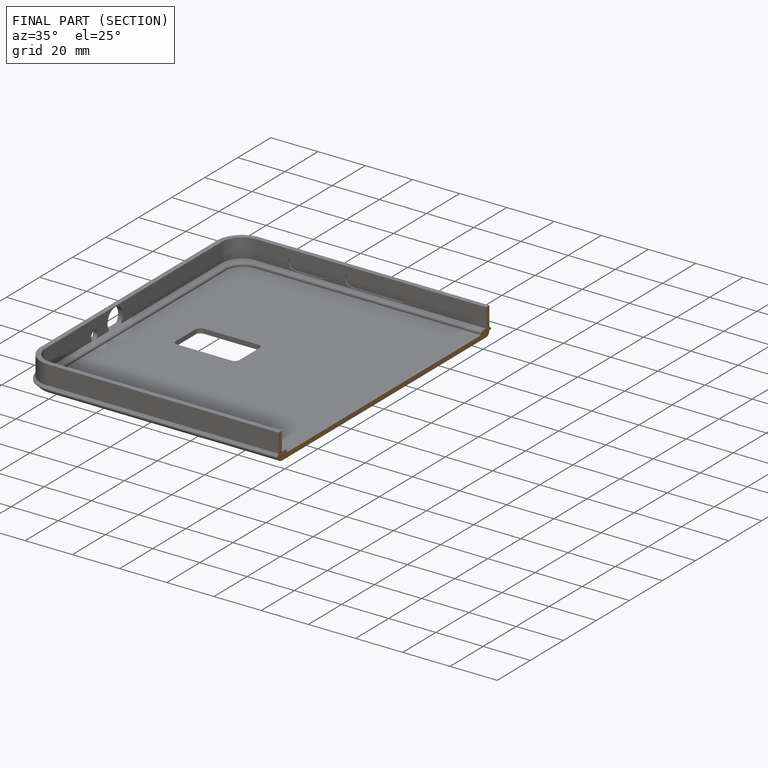
[diagram: finished part — half-section view (interior)]
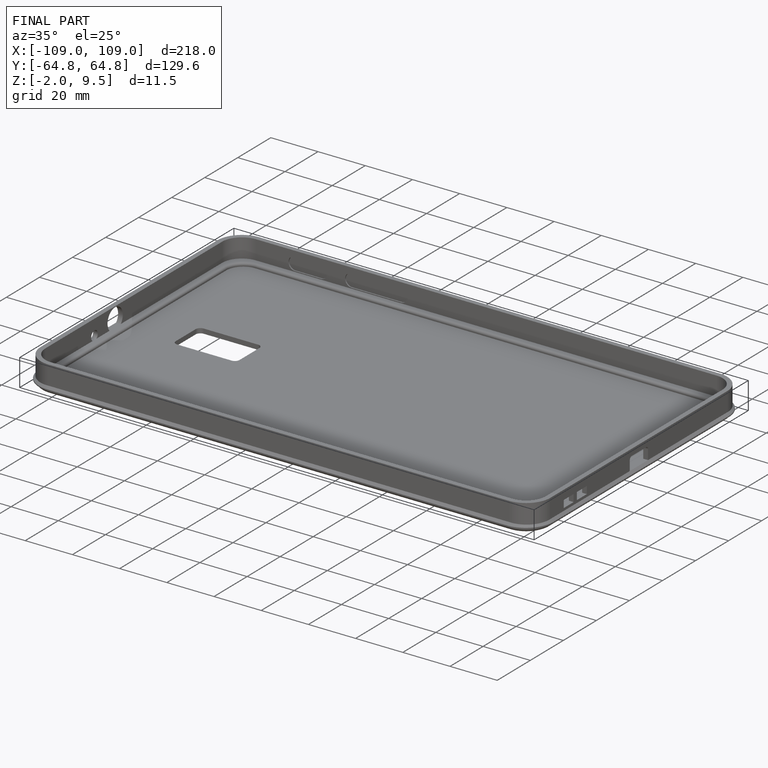
[diagram: finished part — iso view with bounding-box wireframe]
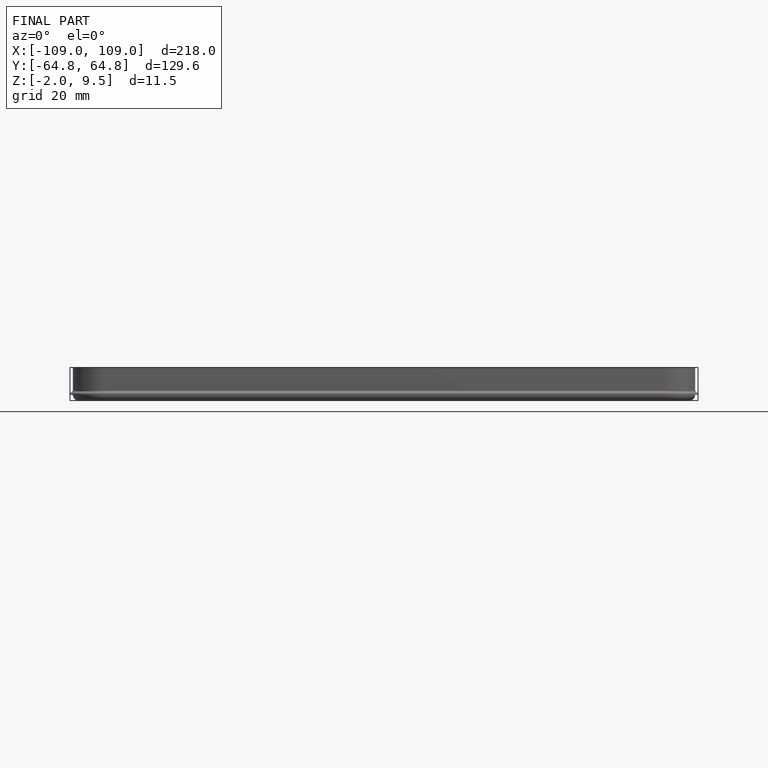
[diagram: finished part — front view with bounding-box wireframe]
